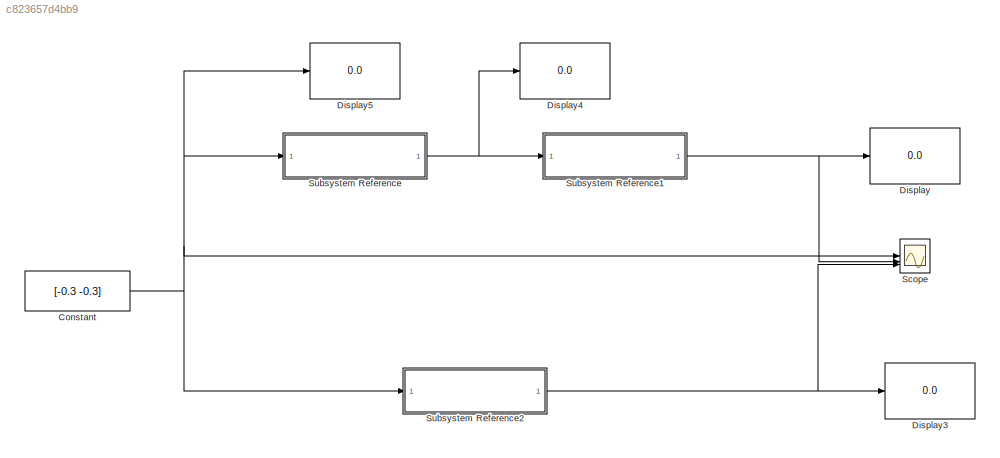
MODEL slx_c823657d4bb9
KIND model
CONFIG AbsTol = auto
CONFIG EnableMultiTasking = off
CONFIG FixedStep = auto
CONFIG MaxStep = auto
CONFIG MinStep = auto
CONFIG RelTol = 1e-3
CONFIG SampleTimeConstraint = Unconstrained
CONFIG SolverName = VariableStepAuto
CONFIG StartTime = 0.0
CONFIG StopTime = 10.0
BLOCK [Constant] Constant
  Value = [-0.3 -0.3]
BLOCK [Display] Display
  Decimation = 1
BLOCK [Display] Display3
  Decimation = 1
BLOCK [Display] Display4
  Decimation = 1
BLOCK [Display] Display5
  Decimation = 1
BLOCK [Scope] Scope
  Floating = off
  NumInputPorts = 3
  ScopeSpecificationString = Simulink.scopes.TimeScopeBlockCfg('CurrentConfiguration', extmgr.ConfigurationSet(extmgr.Configuration('Core','General UI',true),extmgr.Configuration('Core','Source UI',true),extmgr.Configuration('Sources','WiredSimulink',true),extmgr.Configuration('Visuals','Time Domain',true),extmgr.Configuration('Tools','Plot Navigation',true),extmgr.Configuration('Tools','Measurements',true)),'Version','2024b'...<+1ch>
BLOCK [SubSystem] Subsystem Reference
  ReferencedSubsystem = Controlador_BA
BLOCK [SubSystem] Subsystem Reference1
  ReferencedSubsystem = Mi_Piero
BLOCK [SubSystem] Subsystem Reference2
  ReferencedSubsystem = Controlador_BC
NET Constant:1 -> Display5:1, Scope:1, Subsystem Reference2:1, Subsystem Reference:1
NET Subsystem Reference1:1 -> Display:1, Scope:2
NET Subsystem Reference2:1 -> Display3:1, Scope:3
NET Subsystem Reference:1 -> Display4:1, Subsystem Reference1:1
note: NET lines group one-source signal fan-out (src -> all destinations, sorted); 1:1 wires keep LINE
